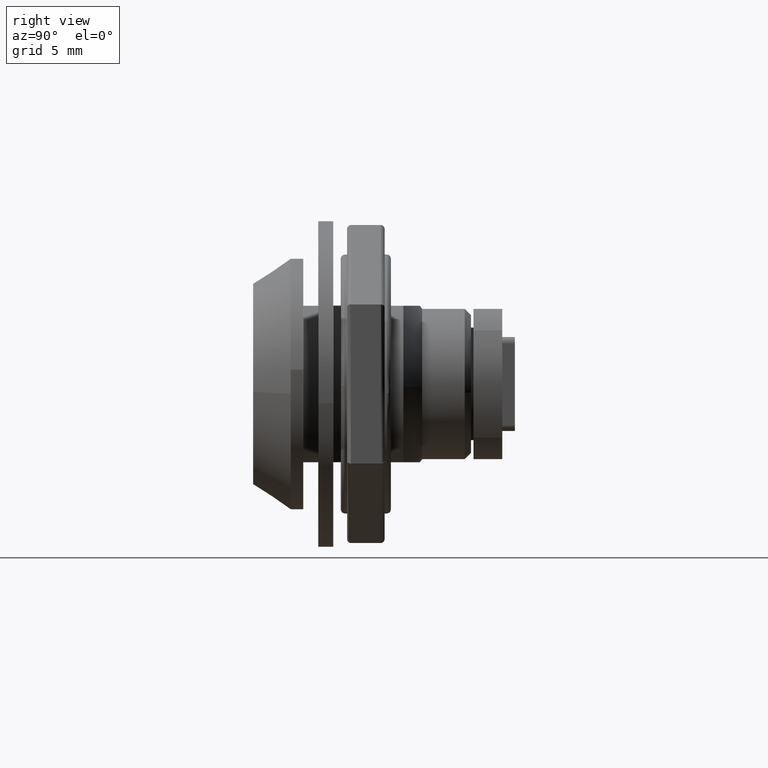
[diagram: clean part render]
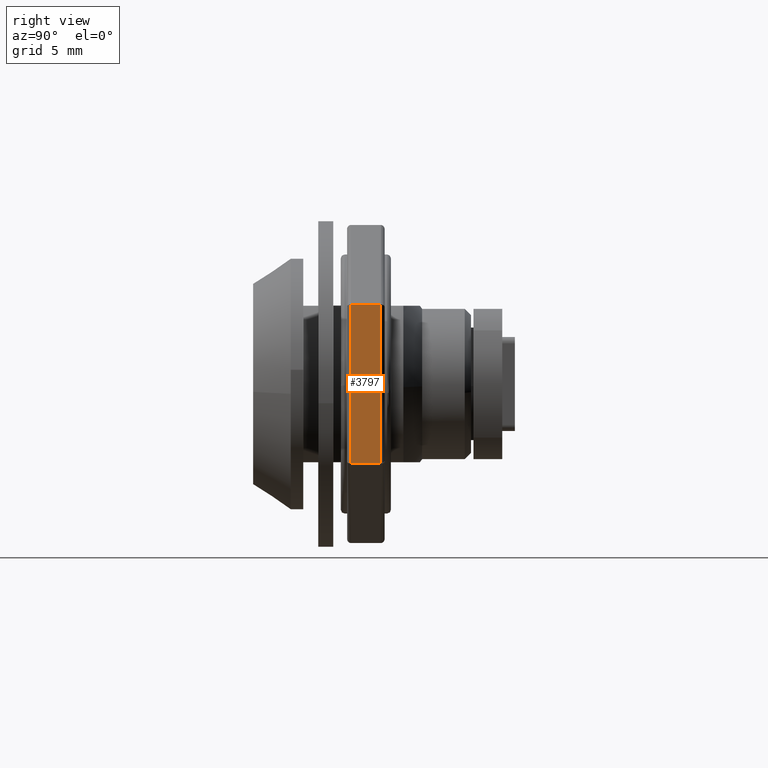
[diagram: same view with one face highlighted and labeled with its STEP entity id]
A machine part, right view. The second image highlights one B-rep face of the part: STEP entity #3797.
In plain terms, the highlighted face is a freeform B-spline surface patch.
Its self-contained STEP definition (entity closure, byte-faithful):
#3351=CARTESIAN_POINT('',(11.000000033700561,7.800000000000000,-6.350852941628760));
#3352=VERTEX_POINT('',#3351);
#3400=CARTESIAN_POINT('',(11.0,7.800000000000000,6.350853000000000));
#3401=VERTEX_POINT('',#3400);
#3446=CARTESIAN_POINT('',(11.0,7.800000000000000,6.350853000000000));
#3447=CARTESIAN_POINT('',(11.000000033700561,7.800000000000000,-6.350852941628760));
#3448=QUASI_UNIFORM_CURVE('',1,(#3446,#3447),.UNSPECIFIED.,.F.,.U.);
#3449=EDGE_CURVE('',#3401,#3352,#3448,.T.);
#3580=CARTESIAN_POINT('',(11.0,10.199999999999999,6.350853000000000));
#3581=VERTEX_POINT('',#3580);
#3670=CARTESIAN_POINT('',(11.000000033700561,10.199999999999999,-6.350852941628760));
#3671=VERTEX_POINT('',#3670);
#3693=CARTESIAN_POINT('',(11.000000033700561,10.199999999999999,-6.350852941628760));
#3694=CARTESIAN_POINT('',(11.0,10.199999999999999,6.350853000000000));
#3695=QUASI_UNIFORM_CURVE('',1,(#3693,#3694),.UNSPECIFIED.,.F.,.U.);
#3696=EDGE_CURVE('',#3671,#3581,#3695,.T.);
#3773=CARTESIAN_POINT('',(11.000000033700561,7.800000000000000,-6.350852941628760));
#3774=CARTESIAN_POINT('',(11.000000033700561,10.199999999999999,-6.350852941628760));
#3775=QUASI_UNIFORM_CURVE('',1,(#3773,#3774),.UNSPECIFIED.,.F.,.U.);
#3776=EDGE_CURVE('',#3352,#3671,#3775,.T.);
#3782=CARTESIAN_POINT('',(11.0,7.680120215991495,-6.985303248029275));
#3783=CARTESIAN_POINT('',(11.0,7.680120215991495,6.985303533524717));
#3784=CARTESIAN_POINT('',(11.0,10.319879869839200,-6.985303248029275));
#3785=CARTESIAN_POINT('',(11.0,10.319879869839200,6.985303533524717));
#3786=B_SPLINE_SURFACE_WITH_KNOTS('',1,1,((#3782,#3784),(#3783,#3785)),.UNSPECIFIED.,.F.,.F.,.U.,(2,2),(2,2),(0.0,13.970606781553990),(0.0,2.639759653847699),.UNSPECIFIED.);
#3787=ORIENTED_EDGE('',*,*,#3776,.T.);
#3788=ORIENTED_EDGE('',*,*,#3696,.T.);
#3789=CARTESIAN_POINT('',(11.0,7.800000000000000,6.350853000000000));
#3790=CARTESIAN_POINT('',(11.0,10.199999999999999,6.350853000000000));
#3791=QUASI_UNIFORM_CURVE('',1,(#3789,#3790),.UNSPECIFIED.,.F.,.U.);
#3792=EDGE_CURVE('',#3401,#3581,#3791,.T.);
#3793=ORIENTED_EDGE('',*,*,#3792,.F.);
#3794=ORIENTED_EDGE('',*,*,#3449,.T.);
#3795=EDGE_LOOP('',(#3787,#3788,#3793,#3794));
#3796=FACE_OUTER_BOUND('',#3795,.T.);
#3797=ADVANCED_FACE('',(#3796),#3786,.F.);